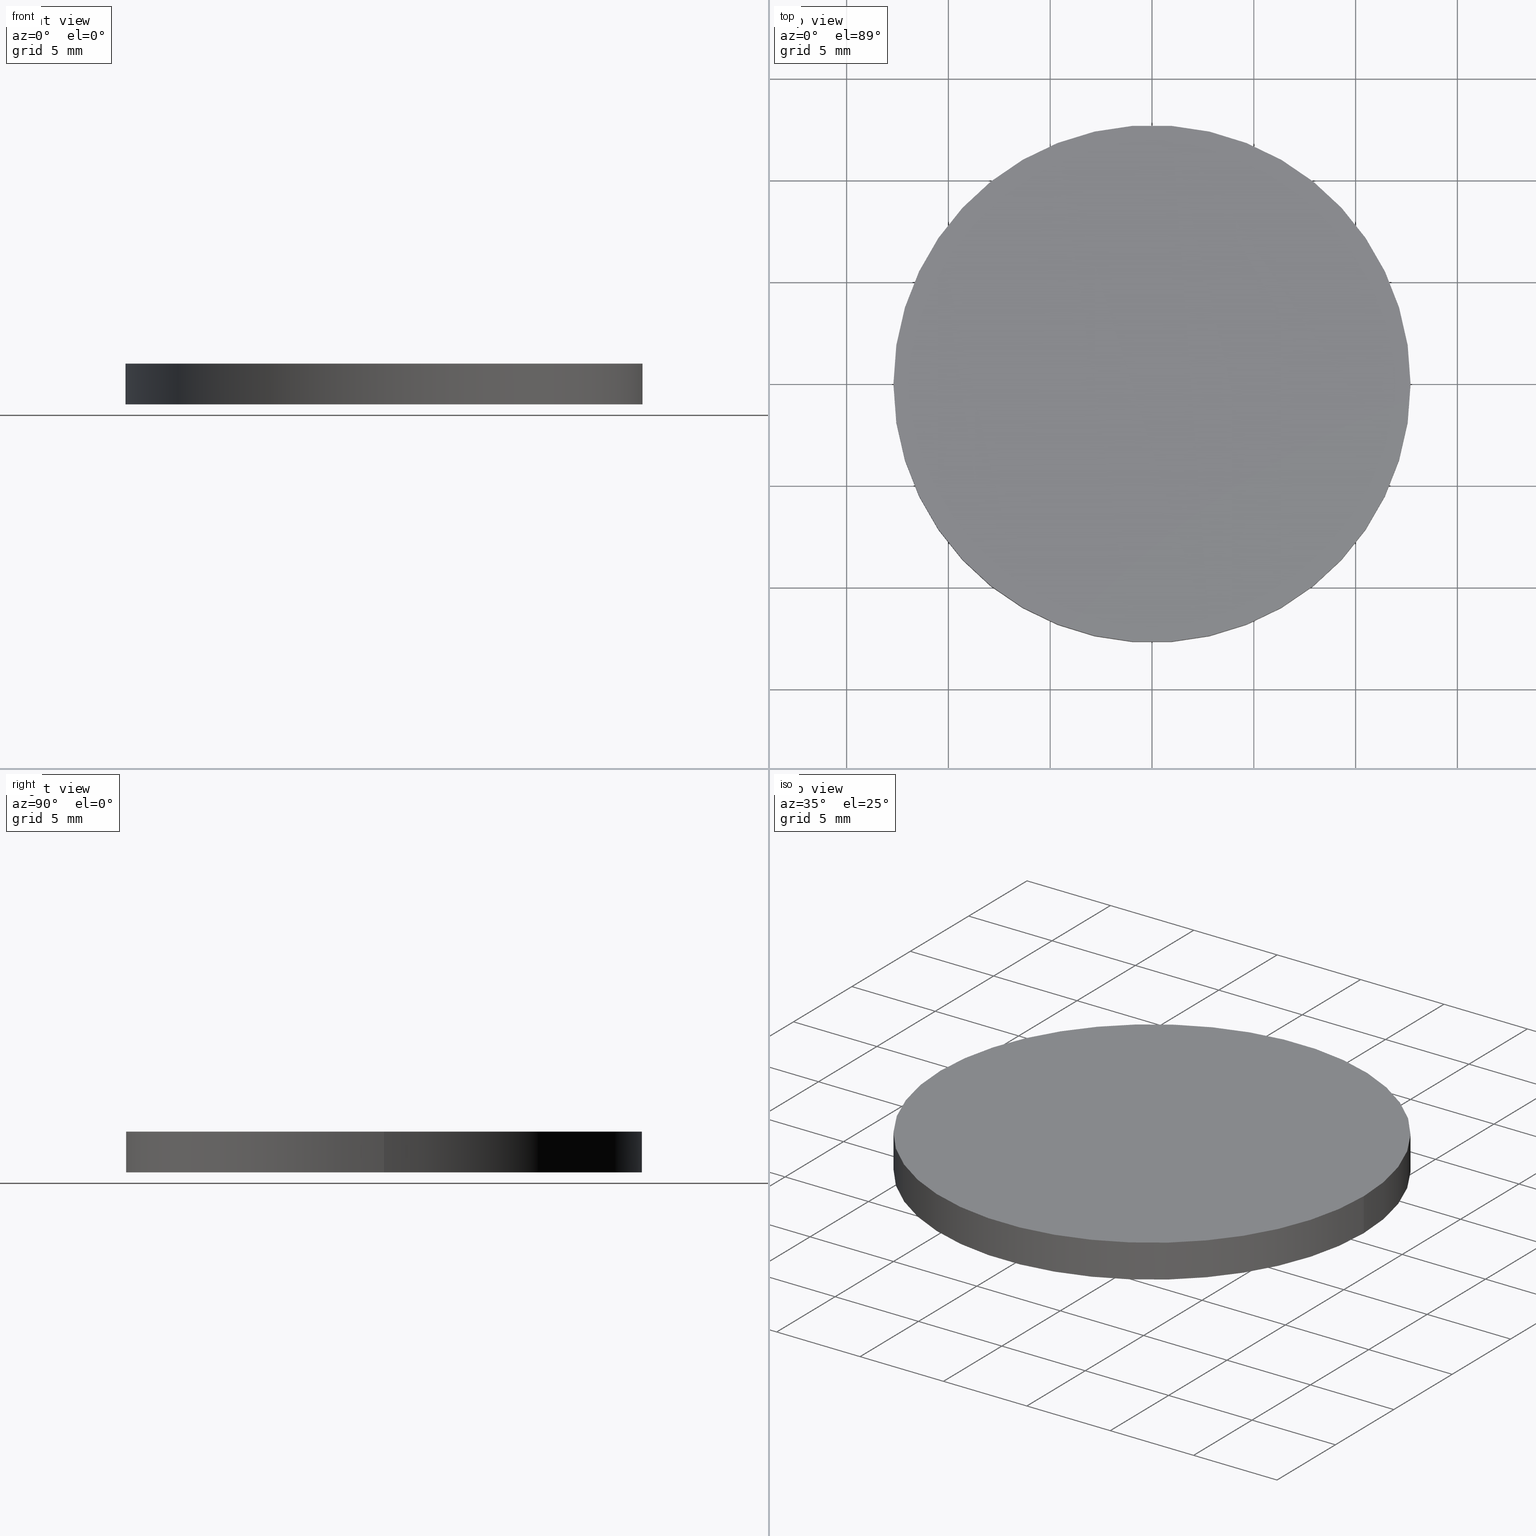
[diagram: canonical four-view strip — front | top / right | iso, engineering-drawing reading convention]
A machine part, canonical four-view strip (front | top / right | iso — engineering-drawing reading convention). The complete STEP part file that produces these views, byte-faithful:
ISO-10303-21;
HEADER;
FILE_DESCRIPTION (( 'STEP AP214' ),
    '1' );
FILE_NAME ('190006.STEP',
    '2019-07-15T05:51:08',
    ( 'user' ),
    ( '΢���й�' ),
    'SwSTEP 2.0',
    'SolidWorks 2016',
    '' );
FILE_SCHEMA (( 'AUTOMOTIVE_DESIGN' ));
ENDSEC;

DATA;
#1 = AXIS2_PLACEMENT_3D ( 'NONE', #60, #115, #48 ) ;
#2 = CARTESIAN_POINT ( 'NONE',  ( -12.69999999999999900, 0.0000000000000000000, 2.000000000000000000 ) ) ;
#3 = CARTESIAN_POINT ( 'NONE',  ( 12.69999999999999900, 1.555301434917138400E-015, 2.000000000000000000 ) ) ;
#4 = ORIENTED_EDGE ( 'NONE', *, *, #36, .F. ) ;
#5 = PRESENTATION_STYLE_ASSIGNMENT (( #112 ) ) ;
#6 = CARTESIAN_POINT ( 'NONE',  ( 0.0000000000000000000, 0.0000000000000000000, 2.000000000000000000 ) ) ;
#7 = PRODUCT_DEFINITION ( 'δ֪', '', #43, #134 ) ;
#8 = ORIENTED_EDGE ( 'NONE', *, *, #122, .T. ) ;
#9 = PRODUCT_CONTEXT ( 'NONE', #138, 'mechanical' ) ;
#10 = APPLICATION_PROTOCOL_DEFINITION ( 'draft international standard', 'automotive_design', 1998, #138 ) ;
#11 = DIRECTION ( 'NONE',  ( 0.0000000000000000000, 0.0000000000000000000, 1.000000000000000000 ) ) ;
#12 = DIRECTION ( 'NONE',  ( 0.0000000000000000000, 0.0000000000000000000, 1.000000000000000000 ) ) ;
#13 = AXIS2_PLACEMENT_3D ( 'NONE', #37, #11, #78 ) ;
#14 = PRESENTATION_LAYER_ASSIGNMENT (  '', '', ( #136 ) ) ;
#15 = ORIENTED_EDGE ( 'NONE', *, *, #75, .F. ) ;
#16 = UNCERTAINTY_MEASURE_WITH_UNIT (LENGTH_MEASURE( 1.000000000000000100E-005 ), #108, 'distance_accuracy_value', 'NONE');
#17 = SURFACE_STYLE_USAGE ( .BOTH. , #103 ) ;
#18 = MECHANICAL_DESIGN_GEOMETRIC_PRESENTATION_REPRESENTATION (  '', ( #136 ), #39 ) ;
#19 = ORIENTED_EDGE ( 'NONE', *, *, #85, .T. ) ;
#20 = CIRCLE ( 'NONE', #119, 12.69999999999999900 ) ;
#21 = AXIS2_PLACEMENT_3D ( 'NONE', #57, #24, #89 ) ;
#22 = FACE_OUTER_BOUND ( 'NONE', #64, .T. ) ;
#23 = MANIFOLD_SOLID_BREP ( '͹̨-����1', #42 ) ;
#24 = DIRECTION ( 'NONE',  ( 0.0000000000000000000, 0.0000000000000000000, 1.000000000000000000 ) ) ;
#25 =( NAMED_UNIT ( * ) SI_UNIT ( $, .STERADIAN. ) SOLID_ANGLE_UNIT ( ) );
#26 = DIRECTION ( 'NONE',  ( 0.0000000000000000000, 0.0000000000000000000, 1.000000000000000000 ) ) ;
#27 = CARTESIAN_POINT ( 'NONE',  ( 12.69999999999999900, 1.555301434917138400E-015, 0.0000000000000000000 ) ) ;
#28 =( GEOMETRIC_REPRESENTATION_CONTEXT ( 3 ) GLOBAL_UNCERTAINTY_ASSIGNED_CONTEXT ( ( #118 ) ) GLOBAL_UNIT_ASSIGNED_CONTEXT ( ( #46, #107, #33 ) ) REPRESENTATION_CONTEXT ( 'NONE', 'WORKASPACE' ) );
#29 = ORIENTED_EDGE ( 'NONE', *, *, #122, .F. ) ;
#30 =( GEOMETRIC_REPRESENTATION_CONTEXT ( 3 ) GLOBAL_UNCERTAINTY_ASSIGNED_CONTEXT ( ( #16 ) ) GLOBAL_UNIT_ASSIGNED_CONTEXT ( ( #108, #35, #25 ) ) REPRESENTATION_CONTEXT ( 'NONE', 'WORKASPACE' ) );
#31 = STYLED_ITEM ( 'NONE', ( #5 ), #87 ) ;
#32 = ORIENTED_EDGE ( 'NONE', *, *, #88, .T. ) ;
#33 =( NAMED_UNIT ( * ) SI_UNIT ( $, .STERADIAN. ) SOLID_ANGLE_UNIT ( ) );
#34 = COLOUR_RGB ( '',1.000000000000000000, 1.000000000000000000, 1.000000000000000000 ) ;
#35 =( NAMED_UNIT ( * ) PLANE_ANGLE_UNIT ( ) SI_UNIT ( $, .RADIAN. ) );
#36 = EDGE_CURVE ( 'NONE', #71, #111, #83, .T. ) ;
#37 = CARTESIAN_POINT ( 'NONE',  ( 0.0000000000000000000, 0.0000000000000000000, 2.000000000000000000 ) ) ;
#38 = DIRECTION ( 'NONE',  ( -1.000000000000000000, 0.0000000000000000000, 0.0000000000000000000 ) ) ;
#39 =( GEOMETRIC_REPRESENTATION_CONTEXT ( 3 ) GLOBAL_UNCERTAINTY_ASSIGNED_CONTEXT ( ( #84 ) ) GLOBAL_UNIT_ASSIGNED_CONTEXT ( ( #41, #81, #97 ) ) REPRESENTATION_CONTEXT ( 'NONE', 'WORKASPACE' ) );
#40 = ORIENTED_EDGE ( 'NONE', *, *, #52, .F. ) ;
#41 =( LENGTH_UNIT ( ) NAMED_UNIT ( * ) SI_UNIT ( .MILLI., .METRE. ) );
#42 = CLOSED_SHELL ( 'NONE', ( #133, #74, #123, #80 ) ) ;
#43 = PRODUCT_DEFINITION_FORMATION_WITH_SPECIFIED_SOURCE ( '�κ�', '', #77, .NOT_KNOWN. ) ;
#44 = AXIS2_PLACEMENT_3D ( 'NONE', #92, #12, #79 ) ;
#45 = FACE_OUTER_BOUND ( 'NONE', #117, .T. ) ;
#46 =( LENGTH_UNIT ( ) NAMED_UNIT ( * ) SI_UNIT ( .MILLI., .METRE. ) );
#47 = PLANE ( 'NONE',  #13 ) ;
#48 = DIRECTION ( 'NONE',  ( 1.000000000000000000, 0.0000000000000000000, 0.0000000000000000000 ) ) ;
#49 = VERTEX_POINT ( 'NONE', #82 ) ;
#50 = CYLINDRICAL_SURFACE ( 'NONE', #140, 12.69999999999999900 ) ;
#51 = CARTESIAN_POINT ( 'NONE',  ( 12.69999999999999900, 1.555301434917138400E-015, 2.000000000000000000 ) ) ;
#52 = EDGE_CURVE ( 'NONE', #71, #65, #105, .T. ) ;
#53 = VECTOR ( 'NONE', #86, 1000.000000000000000 ) ;
#54 = ORIENTED_EDGE ( 'NONE', *, *, #85, .F. ) ;
#55 = PRODUCT_DEFINITION_SHAPE ( 'NONE', 'NONE',  #7 ) ;
#56 = SURFACE_SIDE_STYLE ('',( #96 ) ) ;
#57 = CARTESIAN_POINT ( 'NONE',  ( 0.0000000000000000000, 0.0000000000000000000, 0.0000000000000000000 ) ) ;
#58 = DIRECTION ( 'NONE',  ( 0.0000000000000000000, 0.0000000000000000000, 1.000000000000000000 ) ) ;
#59 = DIRECTION ( 'NONE',  ( 0.0000000000000000000, 0.0000000000000000000, 1.000000000000000000 ) ) ;
#60 = CARTESIAN_POINT ( 'NONE',  ( 0.0000000000000000000, 0.0000000000000000000, 2.000000000000000000 ) ) ;
#61 = PRODUCT_RELATED_PRODUCT_CATEGORY ( 'part', '', ( #77 ) ) ;
#62 = PRESENTATION_STYLE_ASSIGNMENT (( #17 ) ) ;
#63 = AXIS2_PLACEMENT_3D ( 'NONE', #99, #59, #114 ) ;
#64 = EDGE_LOOP ( 'NONE', ( #4, #124, #101, #19 ) ) ;
#65 = VERTEX_POINT ( 'NONE', #93 ) ;
#66 = FILL_AREA_STYLE_COLOUR ( '', #34 ) ;
#67 = CARTESIAN_POINT ( 'NONE',  ( 0.0000000000000000000, 0.0000000000000000000, 2.000000000000000000 ) ) ;
#68 = DIRECTION ( 'NONE',  ( -0.0000000000000000000, -0.0000000000000000000, -1.000000000000000000 ) ) ;
#69 = EDGE_LOOP ( 'NONE', ( #54, #29 ) ) ;
#70 = CYLINDRICAL_SURFACE ( 'NONE', #129, 12.69999999999999900 ) ;
#71 = VERTEX_POINT ( 'NONE', #3 ) ;
#72 = FACE_OUTER_BOUND ( 'NONE', #95, .T. ) ;
#73 = AXIS2_PLACEMENT_3D ( 'NONE', #128, #58, #113 ) ;
#74 = ADVANCED_FACE ( 'NONE', ( #22 ), #50, .T. ) ;
#75 = EDGE_CURVE ( 'NONE', #65, #49, #102, .T. ) ;
#76 = APPLICATION_CONTEXT ( 'automotive_design' ) ;
#77 = PRODUCT ( '190006', '190006', '', ( #9 ) ) ;
#78 = DIRECTION ( 'NONE',  ( 1.000000000000000000, 0.0000000000000000000, -0.0000000000000000000 ) ) ;
#79 = DIRECTION ( 'NONE',  ( 1.000000000000000000, 0.0000000000000000000, 0.0000000000000000000 ) ) ;
#80 = ADVANCED_FACE ( 'NONE', ( #132 ), #130, .F. ) ;
#81 =( NAMED_UNIT ( * ) PLANE_ANGLE_UNIT ( ) SI_UNIT ( $, .RADIAN. ) );
#82 = CARTESIAN_POINT ( 'NONE',  ( -12.69999999999999900, 0.0000000000000000000, 0.0000000000000000000 ) ) ;
#83 = LINE ( 'NONE', #51, #53 ) ;
#84 = UNCERTAINTY_MEASURE_WITH_UNIT (LENGTH_MEASURE( 1.000000000000000100E-005 ), #41, 'distance_accuracy_value', 'NONE');
#85 = EDGE_CURVE ( 'NONE', #49, #111, #125, .T. ) ;
#86 = DIRECTION ( 'NONE',  ( -0.0000000000000000000, -0.0000000000000000000, -1.000000000000000000 ) ) ;
#87 = ADVANCED_BREP_SHAPE_REPRESENTATION ( '190006', ( #23, #21 ), #30 ) ;
#88 = EDGE_CURVE ( 'NONE', #65, #71, #100, .T. ) ;
#89 = DIRECTION ( 'NONE',  ( 1.000000000000000000, 0.0000000000000000000, 0.0000000000000000000 ) ) ;
#90 = SURFACE_STYLE_FILL_AREA ( #94 ) ;
#91 = DIRECTION ( 'NONE',  ( 1.000000000000000000, 0.0000000000000000000, 0.0000000000000000000 ) ) ;
#92 = CARTESIAN_POINT ( 'NONE',  ( 0.0000000000000000000, 0.0000000000000000000, 0.0000000000000000000 ) ) ;
#93 = CARTESIAN_POINT ( 'NONE',  ( -12.69999999999999900, 0.0000000000000000000, 2.000000000000000000 ) ) ;
#94 = FILL_AREA_STYLE ('',( #116 ) ) ;
#95 = EDGE_LOOP ( 'NONE', ( #32, #109 ) ) ;
#96 = SURFACE_STYLE_FILL_AREA ( #126 ) ;
#97 =( NAMED_UNIT ( * ) SI_UNIT ( $, .STERADIAN. ) SOLID_ANGLE_UNIT ( ) );
#98 = CARTESIAN_POINT ( 'NONE',  ( 0.0000000000000000000, 0.0000000000000000000, 0.0000000000000000000 ) ) ;
#99 = CARTESIAN_POINT ( 'NONE',  ( 0.0000000000000000000, 0.0000000000000000000, 0.0000000000000000000 ) ) ;
#100 = CIRCLE ( 'NONE', #73, 12.69999999999999900 ) ;
#101 = ORIENTED_EDGE ( 'NONE', *, *, #75, .T. ) ;
#102 = LINE ( 'NONE', #2, #135 ) ;
#103 = SURFACE_SIDE_STYLE ('',( #90 ) ) ;
#104 = COLOUR_RGB ( '',1.000000000000000000, 1.000000000000000000, 1.000000000000000000 ) ;
#105 = CIRCLE ( 'NONE', #1, 12.69999999999999900 ) ;
#106 = MECHANICAL_DESIGN_GEOMETRIC_PRESENTATION_REPRESENTATION (  '', ( #31 ), #28 ) ;
#107 =( NAMED_UNIT ( * ) PLANE_ANGLE_UNIT ( ) SI_UNIT ( $, .RADIAN. ) );
#108 =( LENGTH_UNIT ( ) NAMED_UNIT ( * ) SI_UNIT ( .MILLI., .METRE. ) );
#109 = ORIENTED_EDGE ( 'NONE', *, *, #52, .T. ) ;
#110 = PRESENTATION_LAYER_ASSIGNMENT (  '', '', ( #31 ) ) ;
#111 = VERTEX_POINT ( 'NONE', #27 ) ;
#112 = SURFACE_STYLE_USAGE ( .BOTH. , #56 ) ;
#113 = DIRECTION ( 'NONE',  ( 1.000000000000000000, 0.0000000000000000000, 0.0000000000000000000 ) ) ;
#114 = DIRECTION ( 'NONE',  ( 1.000000000000000000, 0.0000000000000000000, -0.0000000000000000000 ) ) ;
#115 = DIRECTION ( 'NONE',  ( 0.0000000000000000000, 0.0000000000000000000, 1.000000000000000000 ) ) ;
#116 = FILL_AREA_STYLE_COLOUR ( '', #104 ) ;
#117 = EDGE_LOOP ( 'NONE', ( #40, #120, #8, #15 ) ) ;
#118 = UNCERTAINTY_MEASURE_WITH_UNIT (LENGTH_MEASURE( 1.000000000000000100E-005 ), #46, 'distance_accuracy_value', 'NONE');
#119 = AXIS2_PLACEMENT_3D ( 'NONE', #98, #26, #91 ) ;
#120 = ORIENTED_EDGE ( 'NONE', *, *, #36, .T. ) ;
#121 = SHAPE_DEFINITION_REPRESENTATION ( #55, #87 ) ;
#122 = EDGE_CURVE ( 'NONE', #111, #49, #20, .T. ) ;
#123 = ADVANCED_FACE ( 'NONE', ( #72 ), #47, .T. ) ;
#124 = ORIENTED_EDGE ( 'NONE', *, *, #88, .F. ) ;
#125 = CIRCLE ( 'NONE', #44, 12.69999999999999900 ) ;
#126 = FILL_AREA_STYLE ('',( #66 ) ) ;
#127 = DIRECTION ( 'NONE',  ( -0.0000000000000000000, -0.0000000000000000000, -1.000000000000000000 ) ) ;
#128 = CARTESIAN_POINT ( 'NONE',  ( 0.0000000000000000000, 0.0000000000000000000, 2.000000000000000000 ) ) ;
#129 = AXIS2_PLACEMENT_3D ( 'NONE', #67, #127, #139 ) ;
#130 = PLANE ( 'NONE',  #63 ) ;
#131 = DIRECTION ( 'NONE',  ( -0.0000000000000000000, -0.0000000000000000000, -1.000000000000000000 ) ) ;
#132 = FACE_OUTER_BOUND ( 'NONE', #69, .T. ) ;
#133 = ADVANCED_FACE ( 'NONE', ( #45 ), #70, .T. ) ;
#134 = PRODUCT_DEFINITION_CONTEXT ( 'detailed design', #76, 'design' ) ;
#135 = VECTOR ( 'NONE', #68, 1000.000000000000000 ) ;
#136 = STYLED_ITEM ( 'NONE', ( #62 ), #23 ) ;
#137 = APPLICATION_PROTOCOL_DEFINITION ( 'draft international standard', 'automotive_design', 1998, #76 ) ;
#138 = APPLICATION_CONTEXT ( 'automotive_design' ) ;
#139 = DIRECTION ( 'NONE',  ( -1.000000000000000000, 0.0000000000000000000, 0.0000000000000000000 ) ) ;
#140 = AXIS2_PLACEMENT_3D ( 'NONE', #6, #131, #38 ) ;
ENDSEC;
END-ISO-10303-21;
